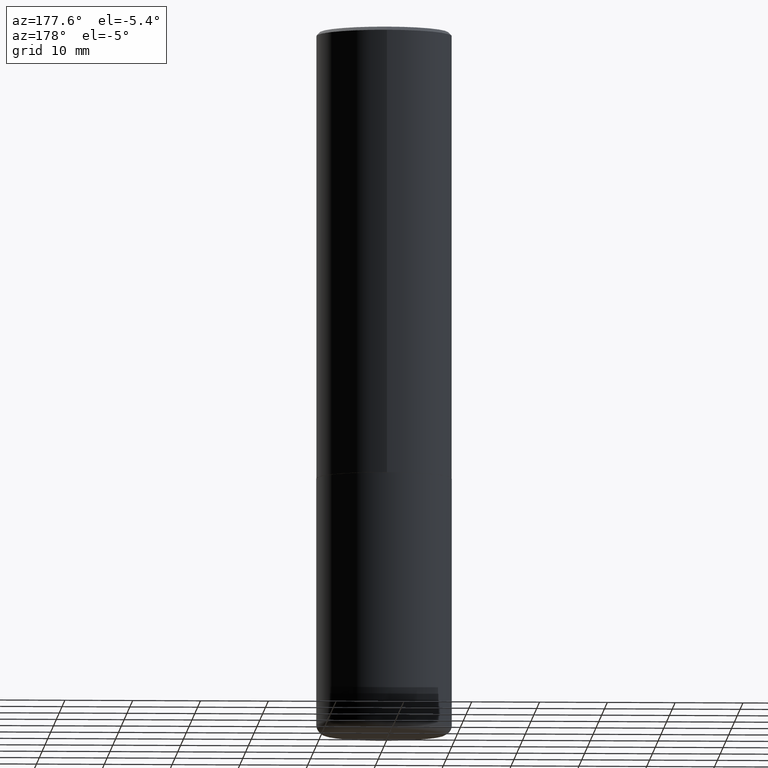
[diagram: clean part render]
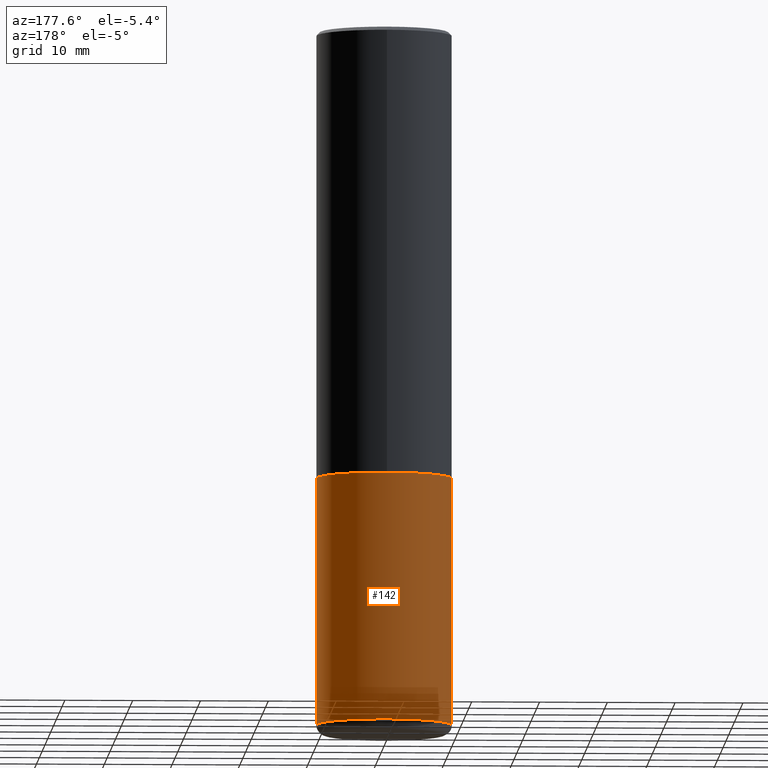
[diagram: same view with one face highlighted and labeled with its STEP entity id]
A machine part, auxiliary view. The second image highlights one B-rep face of the part: STEP entity #142.
In plain terms, the highlighted cylindrical surface (partial cylindrical patch) has radius 10 mm, axis along (-0, 0, 1).
Its self-contained STEP definition (entity closure, byte-faithful):
#17 = CIRCLE ( 'NONE', #336, 0.3937000000000000499 ) ;
#22 = CYLINDRICAL_SURFACE ( 'NONE', #165, 0.3937000000000000499 ) ;
#26 = ORIENTED_EDGE ( 'NONE', *, *, #104, .T. ) ;
#52 = DIRECTION ( 'NONE',  ( -2.445468806185136597E-29, 3.491481338843145583E-15, 1.000000000000000000 ) ) ;
#57 = CARTESIAN_POINT ( 'NONE',  ( 9.868444820479501934E-29, -1.408952379476762952E-14, -4.035400000000000098 ) ) ;
#60 = DIRECTION ( 'NONE',  ( -2.445468806185136597E-29, 3.491481338843145583E-15, 1.000000000000000000 ) ) ;
#86 = CARTESIAN_POINT ( 'NONE',  ( -0.3937000000000000499, 2.797406750687514786E-15, -1.936584745033356735E-29 ) ) ;
#89 = VECTOR ( 'NONE', #183, 39.37007874015748143 ) ;
#100 = CARTESIAN_POINT ( 'NONE',  ( 0.3937000000000000499, -1.182145751705511584E-14, -2.598400000000000265 ) ) ;
#104 = EDGE_CURVE ( 'NONE', #387, #176, #216, .T. ) ;
#105 = VERTEX_POINT ( 'NONE', #272 ) ;
#114 = DIRECTION ( 'NONE',  ( 1.000000000000000000, -6.982962677686267499E-15, 0.000000000000000000 ) ) ;
#132 = CARTESIAN_POINT ( 'NONE',  ( 0.3936999999999999389, -1.683871620097271431E-14, -4.035400000000000098 ) ) ;
#142 = ADVANCED_FACE ( 'NONE', ( #404 ), #22, .T. ) ;
#143 = DIRECTION ( 'NONE',  ( -2.445468806185136597E-29, 3.491481338843145583E-15, 1.000000000000000000 ) ) ;
#145 = EDGE_CURVE ( 'NONE', #316, #105, #17, .T. ) ;
#147 = DIRECTION ( 'NONE',  ( 1.000000000000000000, -6.982962677686265922E-15, 4.876176775795935793E-29 ) ) ;
#160 = EDGE_CURVE ( 'NONE', #176, #105, #278, .T. ) ;
#165 = AXIS2_PLACEMENT_3D ( 'NONE', #351, #60, #147 ) ;
#176 = VERTEX_POINT ( 'NONE', #177 ) ;
#177 = CARTESIAN_POINT ( 'NONE',  ( -0.3936999999999999389, -1.129211704408011394E-14, -4.035400000000000098 ) ) ;
#183 = DIRECTION ( 'NONE',  ( -2.445468806185136877E-29, 3.491481338843145188E-15, 1.000000000000000000 ) ) ;
#211 = CARTESIAN_POINT ( 'NONE',  ( 6.354306145991459756E-29, -9.072265110850031044E-15, -2.598400000000000265 ) ) ;
#212 = ORIENTED_EDGE ( 'NONE', *, *, #145, .F. ) ;
#216 = CIRCLE ( 'NONE', #343, 0.3937000000000000499 ) ;
#224 = EDGE_CURVE ( 'NONE', #387, #316, #412, .T. ) ;
#232 = CARTESIAN_POINT ( 'NONE',  ( 0.3937000000000000499, -2.749192406205083217E-15, 1.919750796630860172E-29 ) ) ;
#272 = CARTESIAN_POINT ( 'NONE',  ( -0.3937000000000000499, -8.783487702121316283E-15, -2.598400000000000265 ) ) ;
#278 = LINE ( 'NONE', #86, #389 ) ;
#279 = DIRECTION ( 'NONE',  ( -2.445468806185136877E-29, 3.491481338843145188E-15, 1.000000000000000000 ) ) ;
#316 = VERTEX_POINT ( 'NONE', #100 ) ;
#319 = ORIENTED_EDGE ( 'NONE', *, *, #160, .T. ) ;
#336 = AXIS2_PLACEMENT_3D ( 'NONE', #211, #52, #114 ) ;
#343 = AXIS2_PLACEMENT_3D ( 'NONE', #57, #143, #373 ) ;
#351 = CARTESIAN_POINT ( 'NONE',  ( 0.000000000000000000, 0.000000000000000000, 0.000000000000000000 ) ) ;
#371 = EDGE_LOOP ( 'NONE', ( #26, #319, #212, #400 ) ) ;
#373 = DIRECTION ( 'NONE',  ( 1.000000000000000000, -6.982962677686267499E-15, 0.000000000000000000 ) ) ;
#387 = VERTEX_POINT ( 'NONE', #132 ) ;
#389 = VECTOR ( 'NONE', #279, 39.37007874015748143 ) ;
#400 = ORIENTED_EDGE ( 'NONE', *, *, #224, .F. ) ;
#404 = FACE_OUTER_BOUND ( 'NONE', #371, .T. ) ;
#412 = LINE ( 'NONE', #232, #89 ) ;